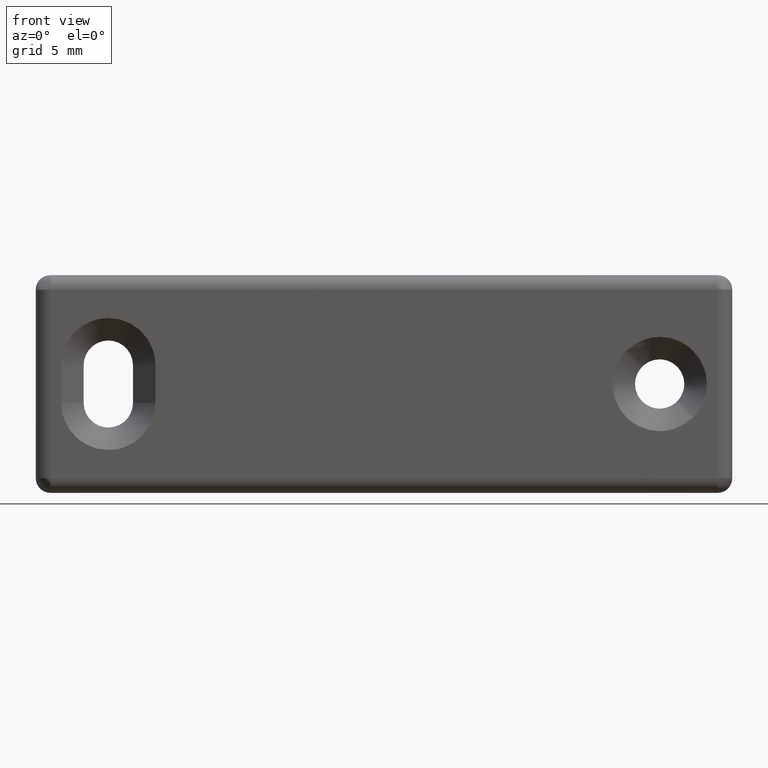
[diagram: clean part render]
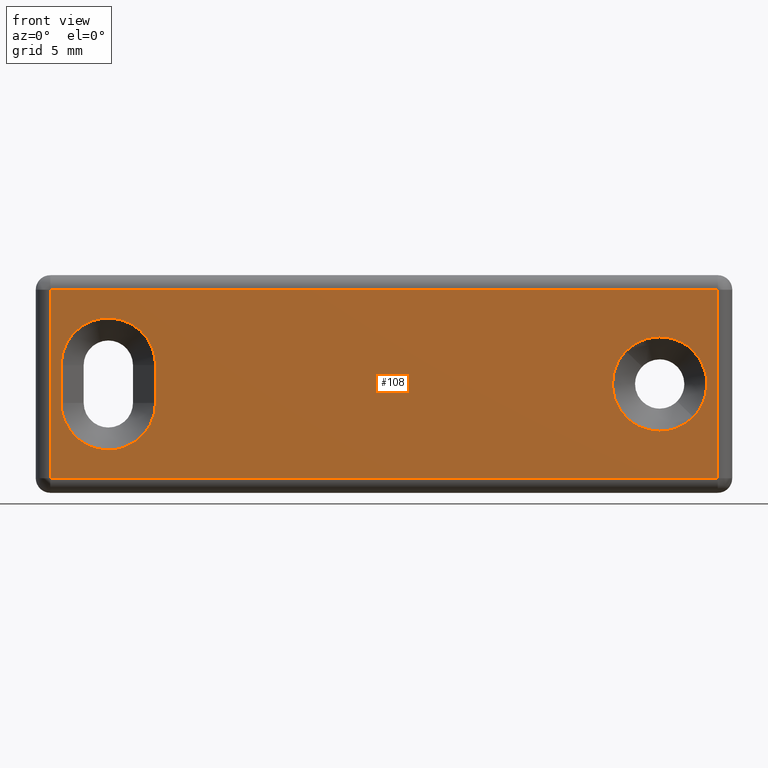
[diagram: same view with one face highlighted and labeled with its STEP entity id]
A machine part, front view. The second image highlights one B-rep face of the part: STEP entity #108.
In plain terms, the highlighted planar face has unit normal (0, 1, 0).
Its self-contained STEP definition (entity closure, byte-faithful):
#108=ADVANCED_FACE('',(#484,#485,#486),#483,.F.);
#483=PLANE('',#1102);
#484=FACE_OUTER_BOUND('',#1103,.T.);
#485=FACE_BOUND('',#1104,.T.);
#486=FACE_BOUND('',#1105,.T.);
#1099=CARTESIAN_POINT('',(-2.76000000000E+01,-3.50000000000E+00,7.80000000000E+00));
#1100=DIRECTION('',(-0.00000000000E+00,1.00000000000E+00,0.00000000000E+00));
#1101=DIRECTION('',(1.00000000000E+00,0.00000000000E+00,0.00000000000E+00));
#1102=AXIS2_PLACEMENT_3D('',#1099,#1100,#1101);
#1103=EDGE_LOOP('',(#1579,#1580,#1581,#1582));
#1104=EDGE_LOOP('',(#1583,#1584,#1585,#1586,#1587,#1588));
#1105=EDGE_LOOP('',(#1589,#1590,#1591,#1592,#1593,#1594,#1595,#1596));
#1579=ORIENTED_EDGE('',*,*,#1956,.T.);
#1580=ORIENTED_EDGE('',*,*,#1957,.T.);
#1581=ORIENTED_EDGE('',*,*,#1958,.T.);
#1582=ORIENTED_EDGE('',*,*,#1959,.T.);
#1583=ORIENTED_EDGE('',*,*,#1960,.T.);
#1584=ORIENTED_EDGE('',*,*,#1961,.T.);
#1585=ORIENTED_EDGE('',*,*,#1962,.T.);
#1586=ORIENTED_EDGE('',*,*,#1963,.T.);
#1587=ORIENTED_EDGE('',*,*,#1964,.T.);
#1588=ORIENTED_EDGE('',*,*,#1965,.T.);
#1589=ORIENTED_EDGE('',*,*,#1966,.T.);
#1590=ORIENTED_EDGE('',*,*,#1967,.T.);
#1591=ORIENTED_EDGE('',*,*,#1968,.T.);
#1592=ORIENTED_EDGE('',*,*,#1969,.T.);
#1593=ORIENTED_EDGE('',*,*,#1970,.T.);
#1594=ORIENTED_EDGE('',*,*,#1971,.T.);
#1595=ORIENTED_EDGE('',*,*,#1972,.T.);
#1596=ORIENTED_EDGE('',*,*,#1973,.T.);
#1956=EDGE_CURVE('',#2885,#2886,#2887,.T.);
#1957=EDGE_CURVE('',#2886,#2893,#2894,.T.);
#1958=EDGE_CURVE('',#2893,#2900,#2901,.T.);
#1959=EDGE_CURVE('',#2900,#2885,#2907,.T.);
#1960=EDGE_CURVE('',#2913,#2914,#2915,.T.);
#1961=EDGE_CURVE('',#2914,#2921,#2922,.T.);
#1962=EDGE_CURVE('',#2921,#2928,#2929,.T.);
#1963=EDGE_CURVE('',#2928,#2935,#2936,.T.);
#1964=EDGE_CURVE('',#2935,#2942,#2943,.T.);
#1965=EDGE_CURVE('',#2942,#2913,#2949,.T.);
#1966=EDGE_CURVE('',#2955,#2956,#2957,.T.);
#1967=EDGE_CURVE('',#2956,#2963,#2964,.T.);
#1968=EDGE_CURVE('',#2963,#2970,#2971,.T.);
#1969=EDGE_CURVE('',#2970,#2977,#2978,.T.);
#1970=EDGE_CURVE('',#2977,#2984,#2985,.T.);
#1971=EDGE_CURVE('',#2984,#2991,#2992,.T.);
#1972=EDGE_CURVE('',#2991,#2998,#2999,.T.);
#1973=EDGE_CURVE('',#2998,#2955,#3005,.T.);
#2885=VERTEX_POINT('',#4190);
#2886=VERTEX_POINT('',#4191);
#2887=LINE('',#4192,#4193);
#2893=VERTEX_POINT('',#4195);
#2894=LINE('',#4196,#4197);
#2900=VERTEX_POINT('',#4199);
#2901=LINE('',#4200,#4201);
#2907=LINE('',#4203,#4204);
#2913=VERTEX_POINT('',#4206);
#2914=VERTEX_POINT('',#4207);
#2915=LINE('',#4208,#4209);
#2921=VERTEX_POINT('',#4211);
#2922=(BOUNDED_CURVE() B_SPLINE_CURVE(3,(#4212,#4213,#4214,#4215,#4216,#4217,#4218,#4219,#4220,#4221,#4222),.UNSPECIFIED.,.F.,.F.) B_SPLINE_CURVE_WITH_KNOTS((4,1,1,1,1,1,1,1,4),(4.93093200000E-08,9.17319990778E-01,1.59535602111E+00,2.11384146511E+00,2.59242771250E+00,3.35022731129E+00,3.86872525626E+00,4.54676055399E+00,5.10512061193E+00),.UNSPECIFIED.) CURVE() GEOMETRIC_REPRESENTATION_ITEM() RATIONAL_B_SPLINE_CURVE((1.00000000000E+00,1.00000000000E+00,1.00000000000E+00,1.00000000000E+00,1.00000000000E+00,1.00000000000E+00,1.00000000000E+00,1.00000000000E+00,1.00000000000E+00,1.00000000000E+00,1.00000000000E+00)) REPRESENTATION_ITEM('') );
#2928=VERTEX_POINT('',#4223);
#2929=(BOUNDED_CURVE() B_SPLINE_CURVE(3,(#4224,#4225,#4226,#4227,#4228,#4229,#4230,#4231,#4232,#4233,#4234),.UNSPECIFIED.,.F.,.F.) B_SPLINE_CURVE_WITH_KNOTS((4,1,1,1,1,1,1,1,4),(4.96346400000E-08,6.38128485482E-01,1.47570282600E+00,1.95430836937E+00,2.51269361963E+00,3.15081185489E+00,3.66930414456E+00,4.14791068666E+00,5.10511957676E+00),.UNSPECIFIED.) CURVE() GEOMETRIC_REPRESENTATION_ITEM() RATIONAL_B_SPLINE_CURVE((1.00000000000E+00,1.00000000000E+00,1.00000000000E+00,1.00000000000E+00,1.00000000000E+00,1.00000000000E+00,1.00000000000E+00,1.00000000000E+00,1.00000000000E+00,1.00000000000E+00,1.00000000000E+00)) REPRESENTATION_ITEM('') );
#2935=VERTEX_POINT('',#4235);
#2936=LINE('',#4236,#4237);
#2942=VERTEX_POINT('',#4239);
#2943=(BOUNDED_CURVE() B_SPLINE_CURVE(3,(#4240,#4241,#4242,#4243,#4244,#4245,#4246,#4247,#4248,#4249,#4250),.UNSPECIFIED.,.F.,.F.) B_SPLINE_CURVE_WITH_KNOTS((4,1,1,1,1,1,1,1,4),(4.93124450000E-08,6.38128615417E-01,1.31616487839E+00,1.75489467609E+00,2.31327625418E+00,3.15081249704E+00,3.78895696298E+00,4.46698341592E+00,5.10512061850E+00),.UNSPECIFIED.) CURVE() GEOMETRIC_REPRESENTATION_ITEM() RATIONAL_B_SPLINE_CURVE((1.00000000000E+00,1.00000000000E+00,1.00000000000E+00,1.00000000000E+00,1.00000000000E+00,1.00000000000E+00,1.00000000000E+00,1.00000000000E+00,1.00000000000E+00,1.00000000000E+00,1.00000000000E+00)) REPRESENTATION_ITEM('') );
#2949=(BOUNDED_CURVE() B_SPLINE_CURVE(3,(#4251,#4252,#4253,#4254,#4255,#4256,#4257,#4258,#4259,#4260,#4261),.UNSPECIFIED.,.F.,.F.) B_SPLINE_CURVE_WITH_KNOTS((4,1,1,1,1,1,1,1,4),(4.96357440000E-08,6.38128484661E-01,1.31616460840E+00,1.95430836685E+00,2.71209060002E+00,3.35022662740E+00,3.74907167838E+00,4.46698249823E+00,5.10511957019E+00),.UNSPECIFIED.) CURVE() GEOMETRIC_REPRESENTATION_ITEM() RATIONAL_B_SPLINE_CURVE((1.00000000000E+00,1.00000000000E+00,1.00000000000E+00,1.00000000000E+00,1.00000000000E+00,1.00000000000E+00,1.00000000000E+00,1.00000000000E+00,1.00000000000E+00,1.00000000000E+00,1.00000000000E+00)) REPRESENTATION_ITEM('') );
#2955=VERTEX_POINT('',#4262);
#2956=VERTEX_POINT('',#4263);
#2957=(BOUNDED_CURVE() B_SPLINE_CURVE(3,(#4264,#4265,#4266,#4267,#4268,#4269,#4270),.UNSPECIFIED.,.F.,.F.) B_SPLINE_CURVE_WITH_KNOTS((4,1,1,1,4),(4.96363030000E-08,6.38128485483E-01,1.31616461009E+00,1.95430836936E+00,2.52419556146E+00),.UNSPECIFIED.) CURVE() GEOMETRIC_REPRESENTATION_ITEM() RATIONAL_B_SPLINE_CURVE((1.00000000000E+00,1.00000000000E+00,1.00000000000E+00,1.00000000000E+00,1.00000000000E+00,1.00000000000E+00,1.00000000000E+00)) REPRESENTATION_ITEM('') );
#2963=VERTEX_POINT('',#4271);
#2964=(BOUNDED_CURVE() B_SPLINE_CURVE(3,(#4272,#4273,#4274,#4275,#4276,#4277,#4278,#4279),.UNSPECIFIED.,.F.,.F.) B_SPLINE_CURVE_WITH_KNOTS((4,1,1,1,1,4),(2.52419556146E+00,2.71209060350E+00,3.35022663172E+00,3.90860925187E+00,4.38722224276E+00,5.10511957676E+00),.UNSPECIFIED.) CURVE() GEOMETRIC_REPRESENTATION_ITEM() RATIONAL_B_SPLINE_CURVE((1.00000000000E+00,1.00000000000E+00,1.00000000000E+00,1.00000000000E+00,1.00000000000E+00,1.00000000000E+00,1.00000000000E+00,1.00000000000E+00)) REPRESENTATION_ITEM('') );
#2970=VERTEX_POINT('',#4280);
#2971=(BOUNDED_CURVE() B_SPLINE_CURVE(3,(#4281,#4282,#4283,#4284,#4285,#4286),.UNSPECIFIED.,.F.,.F.) B_SPLINE_CURVE_WITH_KNOTS((4,1,1,4),(1.44563570000E-08,9.07138521281E-01,1.49873634270E+00,2.52419778532E+00),.UNSPECIFIED.) CURVE() GEOMETRIC_REPRESENTATION_ITEM() RATIONAL_B_SPLINE_CURVE((1.00000000000E+00,1.00000000000E+00,1.00000000000E+00,1.00000000000E+00,1.00000000000E+00,1.00000000000E+00)) REPRESENTATION_ITEM('') );
#2977=VERTEX_POINT('',#4287);
#2978=(BOUNDED_CURVE() B_SPLINE_CURVE(3,(#4288,#4289,#4290,#4291,#4292,#4293,#4294),.UNSPECIFIED.,.F.,.F.) B_SPLINE_CURVE_WITH_KNOTS((4,1,1,1,4),(1.39244240000E-08,6.04903971389E-01,1.33078069863E+00,1.89536490414E+00,2.58092296890E+00),.UNSPECIFIED.) CURVE() GEOMETRIC_REPRESENTATION_ITEM() RATIONAL_B_SPLINE_CURVE((1.00000000000E+00,1.00000000000E+00,1.00000000000E+00,1.00000000000E+00,1.00000000000E+00,1.00000000000E+00,1.00000000000E+00)) REPRESENTATION_ITEM('') );
#2984=VERTEX_POINT('',#4295);
#2985=(BOUNDED_CURVE() B_SPLINE_CURVE(3,(#4296,#4297,#4298,#4299,#4300,#4301,#4302),.UNSPECIFIED.,.F.,.F.) B_SPLINE_CURVE_WITH_KNOTS((4,1,1,1,4),(4.96405520000E-08,6.38128485486E-01,1.11674407427E+00,1.95430836937E+00,2.52105770006E+00),.UNSPECIFIED.) CURVE() GEOMETRIC_REPRESENTATION_ITEM() RATIONAL_B_SPLINE_CURVE((1.00000000000E+00,1.00000000000E+00,1.00000000000E+00,1.00000000000E+00,1.00000000000E+00,1.00000000000E+00,1.00000000000E+00)) REPRESENTATION_ITEM('') );
#2991=VERTEX_POINT('',#4303);
#2992=(BOUNDED_CURVE() B_SPLINE_CURVE(3,(#4304,#4305,#4306,#4307,#4308,#4309,#4310,#4311),.UNSPECIFIED.,.F.,.F.) B_SPLINE_CURVE_WITH_KNOTS((4,1,1,1,1,4),(2.52105770006E+00,2.71209060350E+00,3.35022663172E+00,3.78895618963E+00,4.30744611558E+00,5.10511957676E+00),.UNSPECIFIED.) CURVE() GEOMETRIC_REPRESENTATION_ITEM() RATIONAL_B_SPLINE_CURVE((1.00000000000E+00,1.00000000000E+00,1.00000000000E+00,1.00000000000E+00,1.00000000000E+00,1.00000000000E+00,1.00000000000E+00,1.00000000000E+00)) REPRESENTATION_ITEM('') );
#2998=VERTEX_POINT('',#4312);
#2999=(BOUNDED_CURVE() B_SPLINE_CURVE(3,(#4313,#4314,#4315,#4316,#4317,#4318,#4319),.UNSPECIFIED.,.F.,.F.) B_SPLINE_CURVE_WITH_KNOTS((4,1,1,1,4),(1.44561000000E-08,7.49373076769E-01,1.38041573261E+00,1.89314834262E+00,2.52419778532E+00),.UNSPECIFIED.) CURVE() GEOMETRIC_REPRESENTATION_ITEM() RATIONAL_B_SPLINE_CURVE((1.00000000000E+00,1.00000000000E+00,1.00000000000E+00,1.00000000000E+00,1.00000000000E+00,1.00000000000E+00,1.00000000000E+00)) REPRESENTATION_ITEM('') );
#3005=(BOUNDED_CURVE() B_SPLINE_CURVE(3,(#4320,#4321,#4322,#4323,#4324,#4325,#4326),.UNSPECIFIED.,.F.,.F.) B_SPLINE_CURVE_WITH_KNOTS((4,1,1,1,4),(1.39269840000E-08,6.04903971391E-01,1.25014186953E+00,1.89536490414E+00,2.58092296890E+00),.UNSPECIFIED.) CURVE() GEOMETRIC_REPRESENTATION_ITEM() RATIONAL_B_SPLINE_CURVE((1.00000000000E+00,1.00000000000E+00,1.00000000000E+00,1.00000000000E+00,1.00000000000E+00,1.00000000000E+00,1.00000000000E+00)) REPRESENTATION_ITEM('') );
#4190=CARTESIAN_POINT('',(-2.30000000000E+01,-3.50000000000E+00,-6.50000000000E+00));
#4191=CARTESIAN_POINT('',(2.30000000000E+01,-3.50000000000E+00,-6.50000000000E+00));
#4192=CARTESIAN_POINT('',(-2.30000000000E+01,-3.50000000000E+00,-6.50000000000E+00));
#4193=VECTOR('',#4194,4.60000000000E+01);
#4194=DIRECTION('',(1.00000000000E+00,0.00000000000E+00,0.00000000000E+00));
#4195=CARTESIAN_POINT('',(2.30000000000E+01,-3.50000000000E+00,6.50000000000E+00));
#4196=CARTESIAN_POINT('',(2.30000000000E+01,-3.50000000000E+00,-6.50000000000E+00));
#4197=VECTOR('',#4198,1.30000000000E+01);
#4198=DIRECTION('',(0.00000000000E+00,0.00000000000E+00,1.00000000000E+00));
#4199=CARTESIAN_POINT('',(-2.30000000000E+01,-3.50000000000E+00,6.50000000000E+00));
#4200=CARTESIAN_POINT('',(2.30000000000E+01,-3.50000000000E+00,6.50000000000E+00));
#4201=VECTOR('',#4202,4.60000000000E+01);
#4202=DIRECTION('',(-1.00000000000E+00,0.00000000000E+00,0.00000000000E+00));
#4203=CARTESIAN_POINT('',(-2.30000000000E+01,-3.50000000000E+00,6.50000000000E+00));
#4204=VECTOR('',#4205,1.30000000000E+01);
#4205=DIRECTION('',(0.00000000000E+00,0.00000000000E+00,-1.00000000000E+00));
#4206=CARTESIAN_POINT('',(-1.57500000000E+01,-3.50000000000E+00,1.30000000000E+00));
#4207=CARTESIAN_POINT('',(-1.57500000000E+01,-3.50000000000E+00,-1.30000000000E+00));
#4208=CARTESIAN_POINT('',(-1.57500000000E+01,-3.50000000000E+00,1.30000000000E+00));
#4209=VECTOR('',#4210,2.60000000000E+00);
#4210=DIRECTION('',(-1.34593191293E-13,0.00000000000E+00,-1.00000000000E+00));
#4211=CARTESIAN_POINT('',(-1.90000009183E+01,-3.50000000000E+00,-4.55000000000E+00));
#4212=CARTESIAN_POINT('',(-1.57500000000E+01,-3.50000000000E+00,-1.30000000000E+00));
#4213=CARTESIAN_POINT('',(-1.57498997069E+01,-3.50000000000E+00,-1.60577994629E+00));
#4214=CARTESIAN_POINT('',(-1.58256027240E+01,-3.50000000000E+00,-2.13750535962E+00));
#4215=CARTESIAN_POINT('',(-1.60927410802E+01,-3.50000000000E+00,-2.79366516044E+00));
#4216=CARTESIAN_POINT('',(-1.63953376478E+01,-3.50000000000E+00,-3.26504393620E+00));
#4217=CARTESIAN_POINT('',(-1.67838389280E+01,-3.50000000000E+00,-3.70448469145E+00));
#4218=CARTESIAN_POINT('',(-1.72503384092E+01,-3.50000000000E+00,-4.06394787391E+00));
#4219=CARTESIAN_POINT('',(-1.78358841949E+01,-3.50000000000E+00,-4.35419172523E+00));
#4220=CARTESIAN_POINT('',(-1.84017518687E+01,-3.50000000000E+00,-4.51451793013E+00));
#4221=CARTESIAN_POINT('',(-1.88138822767E+01,-3.50000000000E+00,-4.55001275797E+00));
#4222=CARTESIAN_POINT('',(-1.90000009183E+01,-3.50000000000E+00,-4.55000000000E+00));
#4223=CARTESIAN_POINT('',(-2.22500000000E+01,-3.50000000000E+00,-1.30000000000E+00));
#4224=CARTESIAN_POINT('',(-1.90000009183E+01,-3.50000000000E+00,-4.55000000000E+00));
#4225=CARTESIAN_POINT('',(-1.92127072500E+01,-3.50000000000E+00,-4.55001744171E+00));
#4226=CARTESIAN_POINT('',(-1.97046168185E+01,-3.50000000000E+00,-4.50158390444E+00));
#4227=CARTESIAN_POINT('',(-2.03270354974E+01,-3.50000000000E+00,-4.29175962881E+00));
#4228=CARTESIAN_POINT('',(-2.08683267994E+01,-3.50000000000E+00,-3.97617989049E+00));
#4229=CARTESIAN_POINT('',(-2.13015625329E+01,-3.50000000000E+00,-3.62067314012E+00));
#4230=CARTESIAN_POINT('',(-2.16713881224E+01,-3.50000000000E+00,-3.18114105995E+00));
#4231=CARTESIAN_POINT('',(-2.19438041094E+01,-3.50000000000E+00,-2.70702374276E+00));
#4232=CARTESIAN_POINT('',(-2.21789166551E+01,-3.50000000000E+00,-2.09759747122E+00));
#4233=CARTESIAN_POINT('',(-2.22501602228E+01,-3.50000000000E+00,-1.61908996253E+00));
#4234=CARTESIAN_POINT('',(-2.22500000000E+01,-3.50000000000E+00,-1.30000000000E+00));
#4235=CARTESIAN_POINT('',(-2.22500000000E+01,-3.50000000000E+00,1.30000000000E+00));
#4236=CARTESIAN_POINT('',(-2.22500000000E+01,-3.50000000000E+00,-1.30000000000E+00));
#4237=VECTOR('',#4238,2.60000000000E+00);
#4238=DIRECTION('',(-5.95762755368E-13,0.00000000000E+00,1.00000000000E+00));
#4239=CARTESIAN_POINT('',(-1.89999990700E+01,-3.50000000000E+00,4.55000000000E+00));
#4240=CARTESIAN_POINT('',(-2.22500000000E+01,-3.50000000000E+00,1.30000000000E+00));
#4241=CARTESIAN_POINT('',(-2.22500191179E+01,-3.50000000000E+00,1.51270857606E+00));
#4242=CARTESIAN_POINT('',(-2.22067934603E+01,-3.50000000000E+00,1.95142433575E+00));
#4243=CARTESIAN_POINT('',(-2.20326154022E+01,-3.50000000000E+00,2.51318637414E+00));
#4244=CARTESIAN_POINT('',(-2.17778952256E+01,-3.50000000000E+00,3.01151425296E+00));
#4245=CARTESIAN_POINT('',(-2.14183948002E+01,-3.50000000000E+00,3.50904318911E+00));
#4246=CARTESIAN_POINT('',(-2.09090209083E+01,-3.50000000000E+00,3.96501665315E+00));
#4247=CARTESIAN_POINT('',(-2.02770291817E+01,-3.50000000000E+00,4.31283303102E+00));
#4248=CARTESIAN_POINT('',(-1.96514209379E+01,-3.50000000000E+00,4.50678321136E+00));
#4249=CARTESIAN_POINT('',(-1.92127117657E+01,-3.50000000000E+00,4.55002501508E+00));
#4250=CARTESIAN_POINT('',(-1.89999990700E+01,-3.50000000000E+00,4.55000000000E+00));
#4251=CARTESIAN_POINT('',(-1.89999990700E+01,-3.50000000000E+00,4.55000000000E+00));
#4252=CARTESIAN_POINT('',(-1.87872890606E+01,-3.50000000000E+00,4.55002542595E+00));
#4253=CARTESIAN_POINT('',(-1.83485795658E+01,-3.50000000000E+00,4.50678567323E+00));
#4254=CARTESIAN_POINT('',(-1.77229704666E+01,-3.50000000000E+00,4.31283245784E+00));
#4255=CARTESIAN_POINT('',(-1.71143926177E+01,-3.50000000000E+00,3.97788635610E+00));
#4256=CARTESIAN_POINT('',(-1.66002342582E+01,-3.50000000000E+00,3.52885154821E+00));
#4257=CARTESIAN_POINT('',(-1.62421752598E+01,-3.50000000000E+00,3.04598073294E+00));
#4258=CARTESIAN_POINT('',(-1.59722447121E+01,-3.50000000000E+00,2.52577161882E+00));
#4259=CARTESIAN_POINT('',(-1.57945119730E+01,-3.50000000000E+00,1.96472489190E+00));
#4260=CARTESIAN_POINT('',(-1.57499783561E+01,-3.50000000000E+00,1.51271100279E+00));
#4261=CARTESIAN_POINT('',(-1.57500000000E+01,-3.50000000000E+00,1.30000000000E+00));
#4262=CARTESIAN_POINT('',(2.22500000000E+01,-3.50000000000E+00,-9.18319437000E-07));
#4263=CARTESIAN_POINT('',(2.13180560112E+01,-3.50000000000E+00,-2.27794729890E+00));
#4264=CARTESIAN_POINT('',(2.22500000000E+01,-3.50000000000E+00,-9.18319437000E-07));
#4265=CARTESIAN_POINT('',(2.22500250820E+01,-3.50000000000E+00,-2.12710361077E-01));
#4266=CARTESIAN_POINT('',(2.22067877461E+01,-3.50000000000E+00,-6.51422310616E-01));
#4267=CARTESIAN_POINT('',(2.20128294721E+01,-3.50000000000E+00,-1.27702733588E+00));
#4268=CARTESIAN_POINT('',(2.17082335460E+01,-3.50000000000E+00,-1.83047429905E+00));
#4269=CARTESIAN_POINT('',(2.14511846296E+01,-3.50000000000E+00,-2.14244161473E+00));
#4270=CARTESIAN_POINT('',(2.13180560112E+01,-3.50000000000E+00,-2.27794729890E+00));
#4271=CARTESIAN_POINT('',(1.90000000000E+01,-3.50000000000E+00,-3.25000000000E+00));
#4272=CARTESIAN_POINT('',(2.13180560112E+01,-3.50000000000E+00,-2.27794729890E+00));
#4273=CARTESIAN_POINT('',(2.12741627500E+01,-3.50000000000E+00,-2.32262429213E+00));
#4274=CARTESIAN_POINT('',(2.10755268220E+01,-3.50000000000E+00,-2.51346048690E+00));
#4275=CARTESIAN_POINT('',(2.07030651366E+01,-3.50000000000E+00,-2.78966906052E+00));
#4276=CARTESIAN_POINT('',(2.01994077358E+01,-3.50000000000E+00,-3.03547159630E+00));
#4277=CARTESIAN_POINT('',(1.96381136392E+01,-3.50000000000E+00,-3.20573804836E+00));
#4278=CARTESIAN_POINT('',(1.92393021020E+01,-3.50000000000E+00,-3.25004647864E+00));
#4279=CARTESIAN_POINT('',(1.90000000000E+01,-3.50000000000E+00,-3.25000000000E+00));
#4280=CARTESIAN_POINT('',(1.67220451322E+01,-3.49999988541E+00,-2.31806371423E+00));
#4281=CARTESIAN_POINT('',(1.90000000000E+01,-3.50000000000E+00,-3.25000000000E+00));
#4282=CARTESIAN_POINT('',(1.86976078927E+01,-3.49999998479E+00,-3.25012140024E+00));
#4283=CARTESIAN_POINT('',(1.81981052436E+01,-3.49999995966E+00,-3.17974212112E+00));
#4284=CARTESIAN_POINT('',(1.74104163312E+01,-3.49999992004E+00,-2.87412001093E+00));
#4285=CARTESIAN_POINT('',(1.69657264812E+01,-3.49999989767E+00,-2.55781437466E+00));
#4286=CARTESIAN_POINT('',(1.67220451322E+01,-3.49999988541E+00,-2.31806371423E+00));
#4287=CARTESIAN_POINT('',(1.57500000000E+01,-3.50000000000E+00,9.18319435000E-07));
#4288=CARTESIAN_POINT('',(1.67220451322E+01,-3.49999988541E+00,-2.31806371423E+00));
#4289=CARTESIAN_POINT('',(1.65782182985E+01,-3.49999989240E+00,-2.17674912458E+00));
#4290=CARTESIAN_POINT('',(1.62908465579E+01,-3.49999990923E+00,-1.83629931906E+00));
#4291=CARTESIAN_POINT('',(1.59881010692E+01,-3.49999993686E+00,-1.27728882926E+00));
#4292=CARTESIAN_POINT('',(1.57941384456E+01,-3.49999996810E+00,-6.45215365969E-01));
#4293=CARTESIAN_POINT('',(1.57499643129E+01,-3.49999998870E+00,-2.28518839112E-01));
#4294=CARTESIAN_POINT('',(1.57500000000E+01,-3.50000000000E+00,9.18319435000E-07));
#4295=CARTESIAN_POINT('',(1.66797390145E+01,-3.50000000000E+00,2.27571211703E+00));
#4296=CARTESIAN_POINT('',(1.57500000000E+01,-3.50000000000E+00,9.18319435000E-07));
#4297=CARTESIAN_POINT('',(1.57499703171E+01,-3.50000000000E+00,2.12711480950E-01));
#4298=CARTESIAN_POINT('',(1.57866937654E+01,-3.50000000000E+00,5.84940418447E-01));
#4299=CARTESIAN_POINT('',(1.59608343584E+01,-3.50000000000E+00,1.21451226368E+00));
#4300=CARTESIAN_POINT('',(1.62488299371E+01,-3.50000000000E+00,1.77804689402E+00));
#4301=CARTESIAN_POINT('',(1.65474675089E+01,-3.50000000000E+00,2.14082824370E+00));
#4302=CARTESIAN_POINT('',(1.66797390145E+01,-3.50000000000E+00,2.27571211703E+00));
#4303=CARTESIAN_POINT('',(1.90000000000E+01,-3.50000000000E+00,3.25000000000E+00));
#4304=CARTESIAN_POINT('',(1.66797390145E+01,-3.50000000000E+00,2.27571211703E+00));
#4305=CARTESIAN_POINT('',(1.67243234690E+01,-3.50000000000E+00,2.32117711638E+00));
#4306=CARTESIAN_POINT('',(1.69236335531E+01,-3.50000000000E+00,2.51283154629E+00));
#4307=CARTESIAN_POINT('',(1.72647486613E+01,-3.50000000000E+00,2.76578545535E+00));
#4308=CARTESIAN_POINT('',(1.77393580554E+01,-3.50000000000E+00,3.00833574515E+00));
#4309=CARTESIAN_POINT('',(1.82954204001E+01,-3.50000000000E+00,3.19584807987E+00));
#4310=CARTESIAN_POINT('',(1.87341036006E+01,-3.50000000000E+00,3.25006630358E+00));
#4311=CARTESIAN_POINT('',(1.90000000000E+01,-3.50000000000E+00,3.25000000000E+00));
#4312=CARTESIAN_POINT('',(2.12779548678E+01,-3.49999988541E+00,2.31806371423E+00));
#4313=CARTESIAN_POINT('',(1.90000000000E+01,-3.50000000000E+00,3.25000000000E+00));
#4314=CARTESIAN_POINT('',(1.92497951393E+01,-3.49999998743E+00,3.25005413825E+00));
#4315=CARTESIAN_POINT('',(1.97099044865E+01,-3.49999996429E+00,3.19668384445E+00));
#4316=CARTESIAN_POINT('',(2.03102009160E+01,-3.49999993409E+00,2.99263873276E+00));
#4317=CARTESIAN_POINT('',(2.08299587696E+01,-3.49999990795E+00,2.70622379991E+00));
#4318=CARTESIAN_POINT('',(2.11279414863E+01,-3.49999989296E+00,2.46551929573E+00));
#4319=CARTESIAN_POINT('',(2.12779548678E+01,-3.49999988541E+00,2.31806371423E+00));
#4320=CARTESIAN_POINT('',(2.12779548678E+01,-3.49999988541E+00,2.31806371423E+00));
#4321=CARTESIAN_POINT('',(2.14217814372E+01,-3.49999989240E+00,2.17674793704E+00));
#4322=CARTESIAN_POINT('',(2.16917250670E+01,-3.49999990821E+00,1.85692210437E+00));
#4323=CARTESIAN_POINT('',(2.20009951105E+01,-3.49999993562E+00,1.30243568055E+00));
#4324=CARTESIAN_POINT('',(2.22030167853E+01,-3.49999996678E+00,6.72092716984E-01));
#4325=CARTESIAN_POINT('',(2.22500375315E+01,-3.49999998870E+00,2.28520446502E-01));
#4326=CARTESIAN_POINT('',(2.22500000000E+01,-3.50000000000E+00,-9.18319437000E-07));